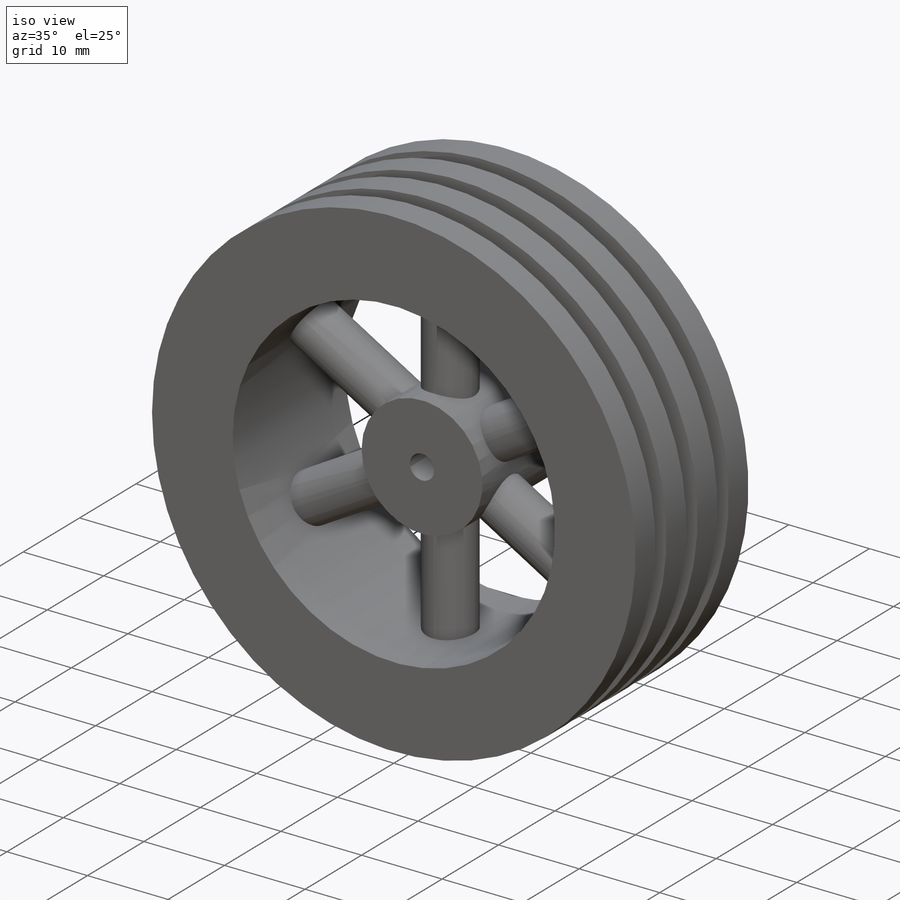
[diagram: iso view]
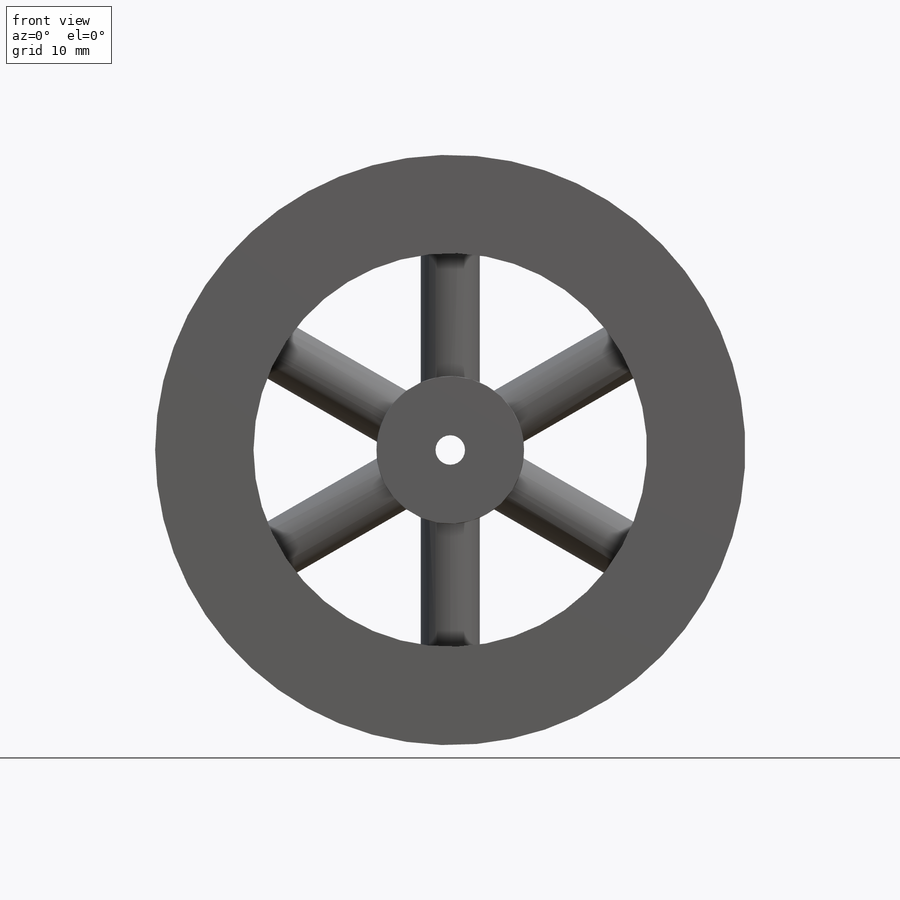
[diagram: front view]
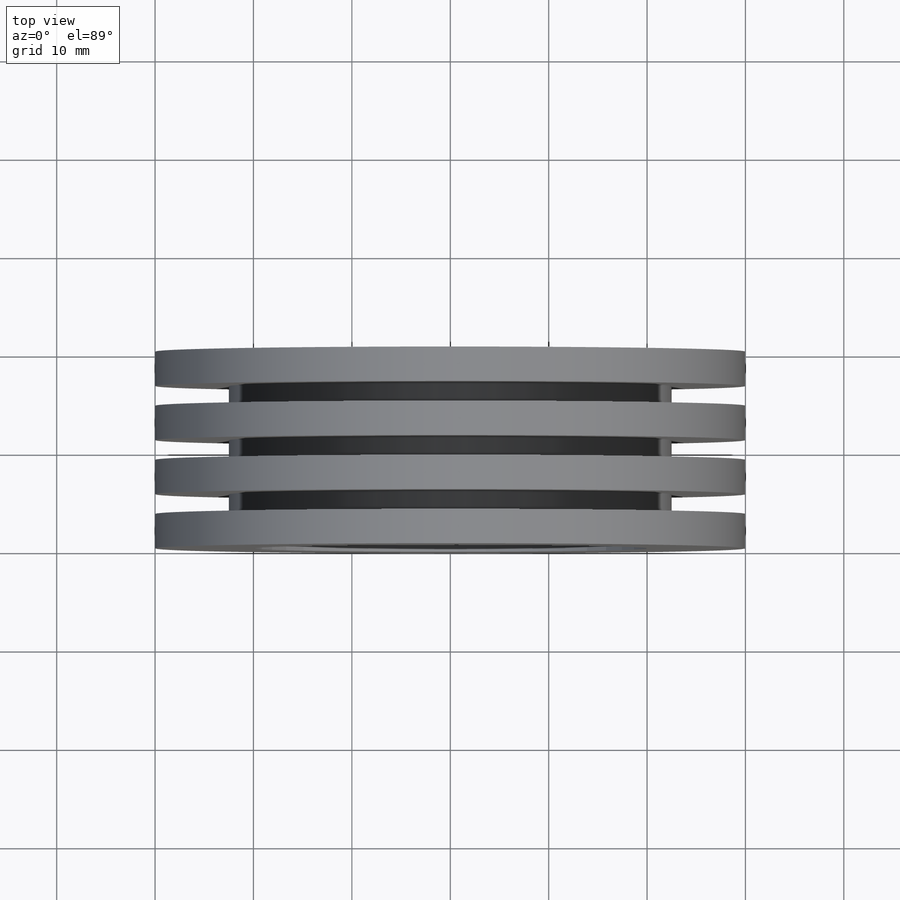
[diagram: top view]
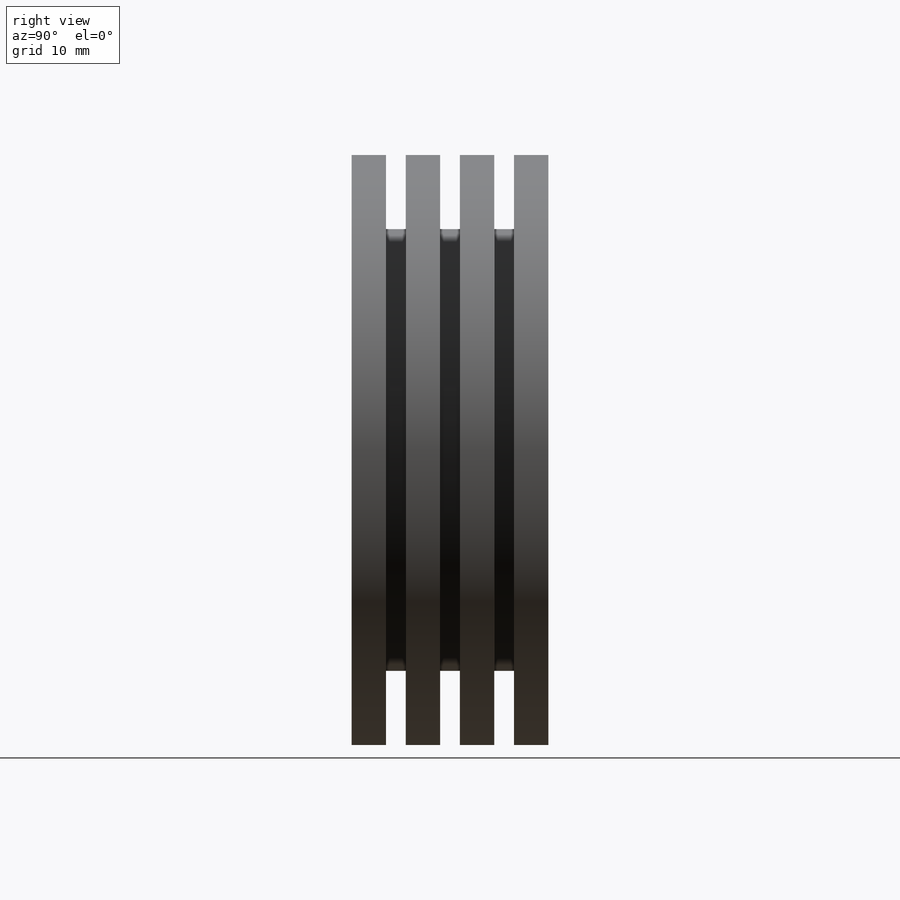
[diagram: right view]
SOLIDWORKS PART (.sldprt)
format: sldprt  version: not decoded by parser v0  size: 289,792 bytes
history: native  units: mm
features: plane x4, sketch x4, extrude x2, material x1, revolve x1, pattern_circular x1, cut_extrude x1 (+10 scaffold rows collapsed)
feature tree (24):
  scaffold x10  (default folders/planes/origin — collapsed)
  material  "材質 <未指定>"
  plane  "前基準面"
  plane  "上基準面"
  plane  "右基準面"
  sketch  "草圖1"  dims[D1=3.0mm D2=15.0mm]
  extrude  "填料-伸長1"  Depth=20mm
  sketch  "草圖2"  dims[D1=2.0mm D2=2.0mm D3=2.0mm D4=20.0mm D5=3.5mm D6=3.5mm D7=3.5mm D8=30.0mm D9=30.0mm D10=30.0mm D11=22.5mm D12=22.5mm D13=22.5mm D14=30.0mm D15=20.0mm]
  plane  "平面1"  Offset=12mm
  revolve  "旋轉2"  Angle=360deg
  sketch  "草圖5"  dims[D1=6.0mm D2=10.0mm]
  extrude  "填料-伸長3"  [1 undecoded]
  pattern_circular  "環狀複製排列1"  Count=6 Angle=360deg
  sketch  "草圖6"  dims[D1=15.0mm]
  cut_extrude  "除料-伸長1"  Depth=5mm
decode coverage: 8 of 9 modeling features carry decoded parameters
note: 1 parameter value undecoded
note: suppression state not decoded; provenance and decode notes live in map.json
